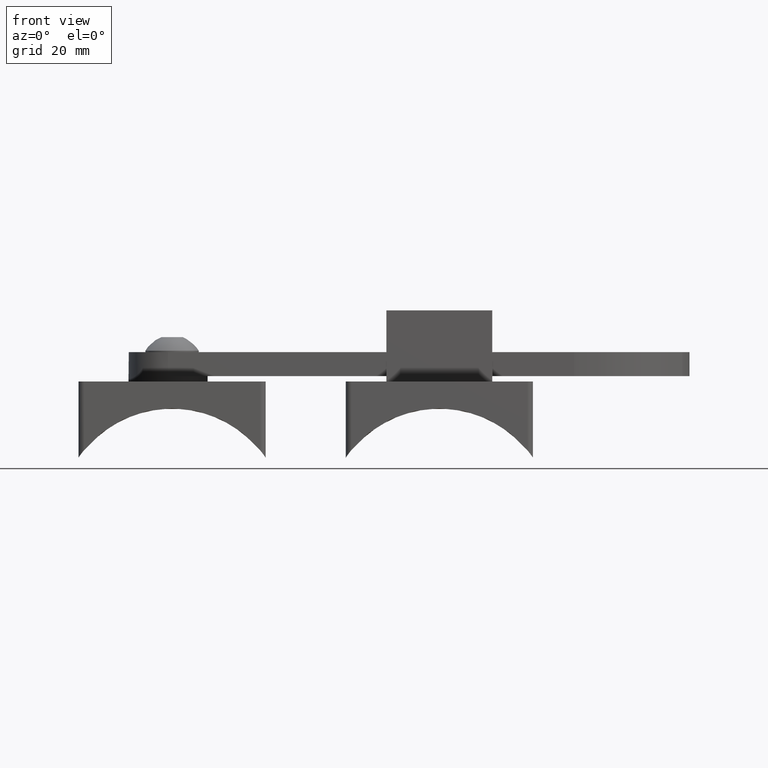
[diagram: clean part render]
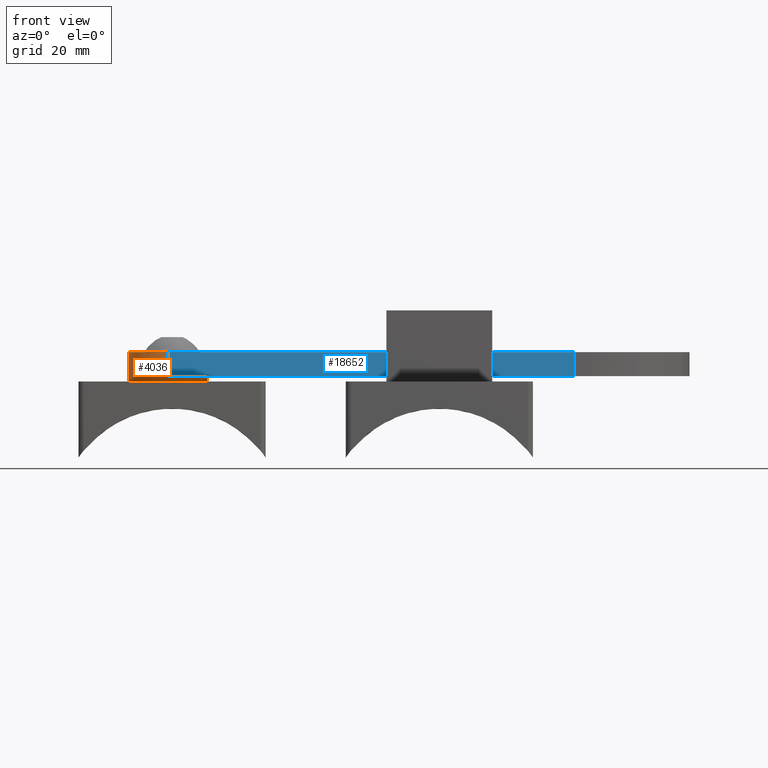
[diagram: same view with the hole feature highlighted: cylindrical wall and planar end face, labeled with their STEP entity ids]
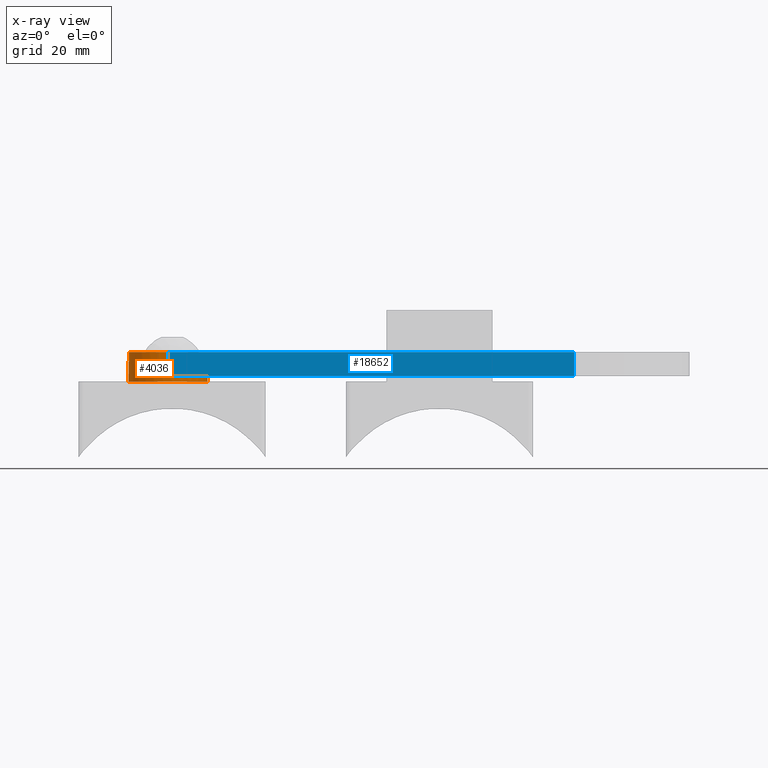
[diagram: x-ray of the same camera — body ghosted, the hole faces saturated]
A machine part, front view. The highlighted faces form one hole feature of diameter 14.8 mm: the cylindrical wall (entity #4036, orange) and its adjacent planar end face (entity #18652, blue) — they share a circular edge in the B-rep.
The next image is the same camera in x-ray (body ghosted, the hole faces saturated) — the bore reads through the body.
Wall:
#290 = CYLINDRICAL_SURFACE ( 'NONE', #15524, 7.399999999999996803 ) ;
#792 = EDGE_CURVE ( 'NONE', #14507, #8246, #15824, .T. ) ;
#1063 = CARTESIAN_POINT ( 'NONE',  ( 45.09546788749680957, -7.806255641895631925E-15, 2.250000000000000444 ) ) ;
#1639 = ORIENTED_EDGE ( 'NONE', *, *, #792, .F. ) ;
#1671 = ORIENTED_EDGE ( 'NONE', *, *, #3058, .F. ) ;
#1869 = DIRECTION ( 'NONE',  ( 1.000000000000000000, 0.000000000000000000, 0.000000000000000000 ) ) ;
#1894 = FACE_OUTER_BOUND ( 'NONE', #16903, .T. ) ;
#2063 = ORIENTED_EDGE ( 'NONE', *, *, #4279, .F. ) ;
#2128 = CARTESIAN_POINT ( 'NONE',  ( 45.09546788749680957, -7.400000000000008349, -2.250000000000000000 ) ) ;
#2553 = LINE ( 'NONE', #11387, #7537 ) ;
#2582 = CIRCLE ( 'NONE', #10569, 7.399999999999996803 ) ;
#3058 = EDGE_CURVE ( 'NONE', #14248, #14248, #11981, .T. ) ;
#3241 = CIRCLE ( 'NONE', #11246, 7.399999999999996803 ) ;
#3890 = DIRECTION ( 'NONE',  ( -2.821186441973490019E-37, 1.128474576789396008E-36, -1.000000000000000000 ) ) ;
#4036 = ADVANCED_FACE ( 'NONE', ( #12105, #1894 ), #290, .T. ) ;
#4059 = DIRECTION ( 'NONE',  ( -1.000000000000000000, 0.000000000000000000, 0.000000000000000000 ) ) ;
#4094 = DIRECTION ( 'NONE',  ( -2.821186441973490019E-37, 1.128474576789396008E-36, -1.000000000000000000 ) ) ;
#4120 = EDGE_CURVE ( 'NONE', #6875, #13064, #2553, .T. ) ;
#4279 = EDGE_CURVE ( 'NONE', #6875, #14507, #3241, .T. ) ;
#5739 = CARTESIAN_POINT ( 'NONE',  ( 45.09546788749680957, -7.400000000000008349, 2.250000000000000444 ) ) ;
#5750 = CARTESIAN_POINT ( 'NONE',  ( 45.09546788749680246, 7.399999999999985256, 2.250000000000000444 ) ) ;
#5921 = DIRECTION ( 'NONE',  ( -2.821186441973490019E-37, 1.128474576789396008E-36, -1.000000000000000000 ) ) ;
#6130 = CARTESIAN_POINT ( 'NONE',  ( 45.09546788749680957, -7.806255641895631925E-15, 2.250000000000000444 ) ) ;
#6875 = VERTEX_POINT ( 'NONE', #5739 ) ;
#7537 = VECTOR ( 'NONE', #12970, 1000.000000000000000 ) ;
#8246 = VERTEX_POINT ( 'NONE', #16380 ) ;
#8404 = CARTESIAN_POINT ( 'NONE',  ( 45.09546788749680957, -7.806255641895631925E-15, -3.250000000000000000 ) ) ;
#9571 = CARTESIAN_POINT ( 'NONE',  ( 45.09546788749680246, 7.399999999999985256, 2.250000000000000444 ) ) ;
#9736 = CARTESIAN_POINT ( 'NONE',  ( 37.69546788749681809, -7.806255641895631925E-15, -3.250000000000000000 ) ) ;
#10363 = AXIS2_PLACEMENT_3D ( 'NONE', #8404, #18600, #4059 ) ;
#10569 = AXIS2_PLACEMENT_3D ( 'NONE', #14641, #5921, #16103 ) ;
#11130 = ORIENTED_EDGE ( 'NONE', *, *, #14263, .T. ) ;
#11246 = AXIS2_PLACEMENT_3D ( 'NONE', #6130, #15026, #1869 ) ;
#11387 = CARTESIAN_POINT ( 'NONE',  ( 45.09546788749680957, -7.400000000000008349, 2.250000000000000444 ) ) ;
#11933 = VECTOR ( 'NONE', #3890, 1000.000000000000000 ) ;
#11981 = CIRCLE ( 'NONE', #10363, 7.399999999999996803 ) ;
#12105 = FACE_OUTER_BOUND ( 'NONE', #15880, .T. ) ;
#12720 = DIRECTION ( 'NONE',  ( -1.000000000000000000, 0.000000000000000000, 0.000000000000000000 ) ) ;
#12970 = DIRECTION ( 'NONE',  ( -2.821186441973490019E-37, 1.128474576789396008E-36, -1.000000000000000000 ) ) ;
#13064 = VERTEX_POINT ( 'NONE', #2128 ) ;
#14248 = VERTEX_POINT ( 'NONE', #9736 ) ;
#14263 = EDGE_CURVE ( 'NONE', #13064, #8246, #2582, .T. ) ;
#14507 = VERTEX_POINT ( 'NONE', #5750 ) ;
#14641 = CARTESIAN_POINT ( 'NONE',  ( 45.09546788749680957, -7.806255641895631925E-15, -2.250000000000000000 ) ) ;
#15026 = DIRECTION ( 'NONE',  ( 2.821186441973490019E-37, -1.128474576789396008E-36, 1.000000000000000000 ) ) ;
#15524 = AXIS2_PLACEMENT_3D ( 'NONE', #1063, #4094, #12720 ) ;
#15824 = LINE ( 'NONE', #9571, #11933 ) ;
#15880 = EDGE_LOOP ( 'NONE', ( #18309, #11130, #1639, #2063 ) ) ;
#16103 = DIRECTION ( 'NONE',  ( -1.000000000000000000, 0.000000000000000000, 0.000000000000000000 ) ) ;
#16380 = CARTESIAN_POINT ( 'NONE',  ( 45.09546788749680957, 7.399999999999987033, -2.250000000000000000 ) ) ;
#16903 = EDGE_LOOP ( 'NONE', ( #1671 ) ) ;
#18309 = ORIENTED_EDGE ( 'NONE', *, *, #4120, .T. ) ;
#18600 = DIRECTION ( 'NONE',  ( -2.821186441973490019E-37, 1.128474576789396008E-36, -1.000000000000000000 ) ) ;
End face:
#513 = DIRECTION ( 'NONE',  ( -2.821186441973490019E-37, 1.128474576789396008E-36, -1.000000000000000000 ) ) ;
#582 = EDGE_CURVE ( 'NONE', #8246, #2450, #6976, .T. ) ;
#714 = ORIENTED_EDGE ( 'NONE', *, *, #582, .T. ) ;
#792 = EDGE_CURVE ( 'NONE', #14507, #8246, #15824, .T. ) ;
#1387 = VERTEX_POINT ( 'NONE', #7433 ) ;
#1933 = ORIENTED_EDGE ( 'NONE', *, *, #18593, .F. ) ;
#1996 = ORIENTED_EDGE ( 'NONE', *, *, #792, .T. ) ;
#2153 = ORIENTED_EDGE ( 'NONE', *, *, #13604, .F. ) ;
#2450 = VERTEX_POINT ( 'NONE', #4917 ) ;
#3890 = DIRECTION ( 'NONE',  ( -2.821186441973490019E-37, 1.128474576789396008E-36, -1.000000000000000000 ) ) ;
#4825 = DIRECTION ( 'NONE',  ( 1.000000000000000000, -2.055359568692898760E-16, 2.350988701644578357E-37 ) ) ;
#4917 = CARTESIAN_POINT ( 'NONE',  ( -30.86453211250306694, 7.400000000000005684, -2.250000000000000000 ) ) ;
#5535 = LINE ( 'NONE', #8585, #8008 ) ;
#5750 = CARTESIAN_POINT ( 'NONE',  ( 45.09546788749680246, 7.399999999999985256, 2.250000000000000444 ) ) ;
#6373 = CARTESIAN_POINT ( 'NONE',  ( 45.09546788749680246, 7.399999999999985256, -2.250000000000000000 ) ) ;
#6976 = LINE ( 'NONE', #6373, #17230 ) ;
#7267 = DIRECTION ( 'NONE',  ( -1.000000000000000000, 2.055359568692898760E-16, -2.350988701644578357E-37 ) ) ;
#7433 = CARTESIAN_POINT ( 'NONE',  ( -30.86453211250306694, 7.400000000000005684, 2.250000000000000444 ) ) ;
#8008 = VECTOR ( 'NONE', #7267, 1000.000000000000000 ) ;
#8246 = VERTEX_POINT ( 'NONE', #16380 ) ;
#8585 = CARTESIAN_POINT ( 'NONE',  ( 45.09546788749680246, 7.399999999999985256, 2.250000000000000444 ) ) ;
#9571 = CARTESIAN_POINT ( 'NONE',  ( 45.09546788749680246, 7.399999999999985256, 2.250000000000000444 ) ) ;
#9871 = AXIS2_PLACEMENT_3D ( 'NONE', #12166, #16520, #4825 ) ;
#11161 = EDGE_LOOP ( 'NONE', ( #714, #1933, #2153, #1996 ) ) ;
#11498 = FACE_OUTER_BOUND ( 'NONE', #11161, .T. ) ;
#11933 = VECTOR ( 'NONE', #3890, 1000.000000000000000 ) ;
#12166 = CARTESIAN_POINT ( 'NONE',  ( 45.09546788749680246, 7.399999999999985256, 2.250000000000000444 ) ) ;
#12399 = VECTOR ( 'NONE', #513, 1000.000000000000000 ) ;
#13368 = CARTESIAN_POINT ( 'NONE',  ( -30.86453211250306694, 7.400000000000005684, 2.250000000000000444 ) ) ;
#13604 = EDGE_CURVE ( 'NONE', #14507, #1387, #5535, .T. ) ;
#14507 = VERTEX_POINT ( 'NONE', #5750 ) ;
#15200 = DIRECTION ( 'NONE',  ( -1.000000000000000000, 2.055359568692898760E-16, -2.350988701644578357E-37 ) ) ;
#15824 = LINE ( 'NONE', #9571, #11933 ) ;
#16380 = CARTESIAN_POINT ( 'NONE',  ( 45.09546788749680957, 7.399999999999987033, -2.250000000000000000 ) ) ;
#16450 = PLANE ( 'NONE',  #9871 ) ;
#16520 = DIRECTION ( 'NONE',  ( -2.055359568692898760E-16, -1.000000000000000000, 9.403954806578311757E-37 ) ) ;
#17230 = VECTOR ( 'NONE', #15200, 1000.000000000000000 ) ;
#18593 = EDGE_CURVE ( 'NONE', #1387, #2450, #18757, .T. ) ;
#18652 = ADVANCED_FACE ( 'NONE', ( #11498 ), #16450, .F. ) ;
#18757 = LINE ( 'NONE', #13368, #12399 ) ;